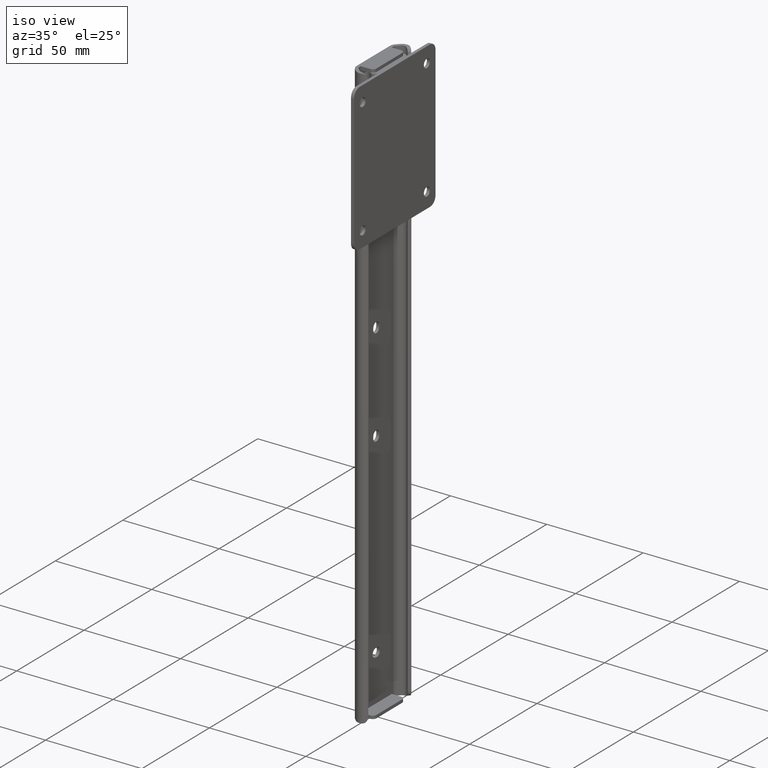
[diagram: clean part render]
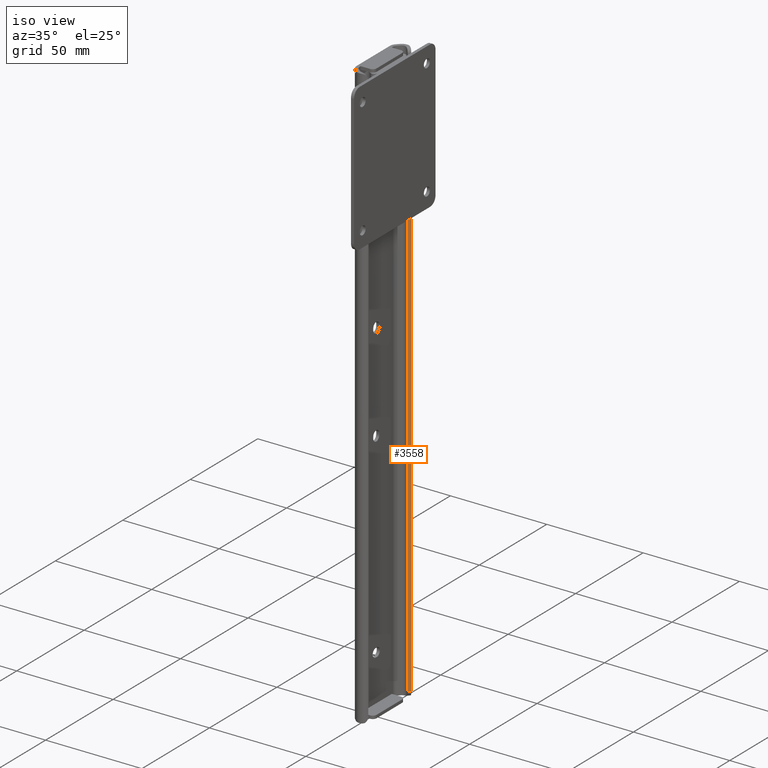
[diagram: same view with one face highlighted and labeled with its STEP entity id]
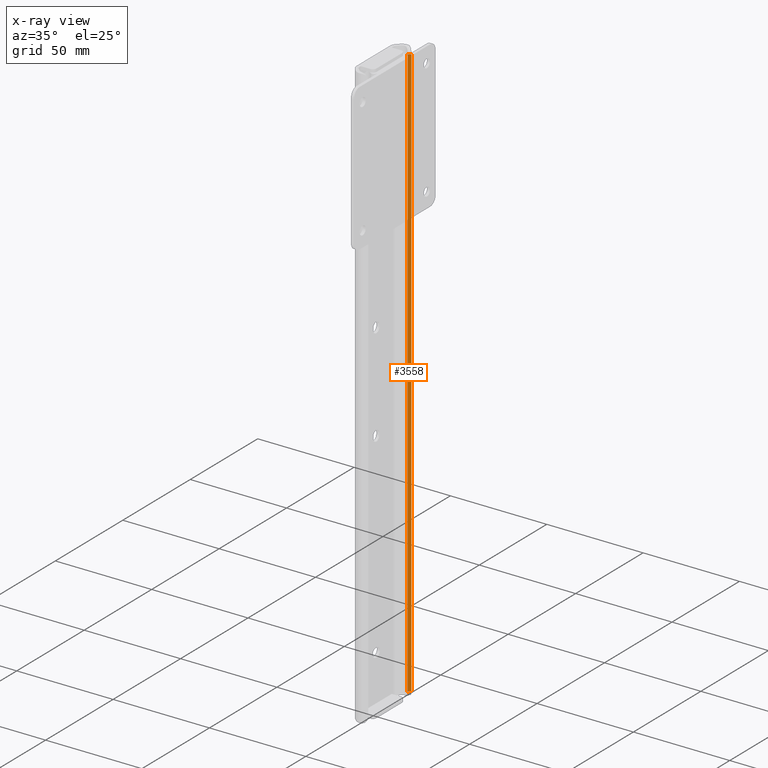
[diagram: x-ray of the same camera — body ghosted, the highlighted face saturated]
A machine part, iso view. The second image highlights one B-rep face of the part: STEP entity #3558.
The next image is the same camera in x-ray: the body ghosted, the highlighted face saturated — about 0% of this face is hidden behind the body in this view.
In plain terms, the highlighted planar face has unit normal (0.7071, -0.7071, 0).
Its self-contained STEP definition (entity closure, byte-faithful):
#25 = VECTOR ( 'NONE', #3204, 1000.000000000000000 ) ;
#136 = EDGE_CURVE ( 'NONE', #2704, #1135, #3371, .T. ) ;
#316 = CARTESIAN_POINT ( 'NONE',  ( 8.600000000000134648, 15.99856997870845809, -304.8000000000000114 ) ) ;
#431 = ORIENTED_EDGE ( 'NONE', *, *, #2764, .T. ) ;
#520 = CARTESIAN_POINT ( 'NONE',  ( 8.600000000000134648, 15.99856997870845809, -3.000000000000002665 ) ) ;
#653 = ORIENTED_EDGE ( 'NONE', *, *, #136, .F. ) ;
#679 = EDGE_LOOP ( 'NONE', ( #653, #431, #3618, #3085 ) ) ;
#688 = EDGE_CURVE ( 'NONE', #1230, #2259, #1467, .T. ) ;
#744 = CARTESIAN_POINT ( 'NONE',  ( 8.600000000000134648, 15.99856997870845809, -3.000000000000113687 ) ) ;
#956 = VECTOR ( 'NONE', #1674, 1000.000000000000114 ) ;
#1135 = VERTEX_POINT ( 'NONE', #2605 ) ;
#1180 = VECTOR ( 'NONE', #2781, 1000.000000000000000 ) ;
#1230 = VERTEX_POINT ( 'NONE', #3699 ) ;
#1312 = LINE ( 'NONE', #2529, #1980 ) ;
#1467 = LINE ( 'NONE', #316, #25 ) ;
#1573 = DIRECTION ( 'NONE',  ( 0.7071067811864955033, -0.7071067811865996422, 0.0000000000000000000 ) ) ;
#1674 = DIRECTION ( 'NONE',  ( -0.7071067811865995312, -0.7071067811864953923, -0.0000000000000000000 ) ) ;
#1737 = AXIS2_PLACEMENT_3D ( 'NONE', #3555, #1573, #2716 ) ;
#1980 = VECTOR ( 'NONE', #2453, 1000.000000000000114 ) ;
#1998 = EDGE_CURVE ( 'NONE', #2259, #1135, #2256, .T. ) ;
#2205 = CARTESIAN_POINT ( 'NONE',  ( 7.468629150101567582, 14.86719912881005712, -304.8000000000000114 ) ) ;
#2234 = CARTESIAN_POINT ( 'NONE',  ( 7.468629150101567582, 14.86719912881005712, -301.8000000000000114 ) ) ;
#2256 = LINE ( 'NONE', #520, #956 ) ;
#2259 = VERTEX_POINT ( 'NONE', #744 ) ;
#2453 = DIRECTION ( 'NONE',  ( 0.7071067811865995312, 0.7071067811864953923, -0.0000000000000000000 ) ) ;
#2529 = CARTESIAN_POINT ( 'NONE',  ( 8.600000000000134648, 15.99856997870845809, -301.8000000000000114 ) ) ;
#2605 = CARTESIAN_POINT ( 'NONE',  ( 7.468629150101567582, 14.86719912881005712, -3.000000000000113687 ) ) ;
#2704 = VERTEX_POINT ( 'NONE', #2234 ) ;
#2716 = DIRECTION ( 'NONE',  ( 0.7071067811865995312, 0.7071067811864953923, 0.0000000000000000000 ) ) ;
#2764 = EDGE_CURVE ( 'NONE', #2704, #1230, #1312, .T. ) ;
#2781 = DIRECTION ( 'NONE',  ( 0.0000000000000000000, 0.0000000000000000000, 1.000000000000000000 ) ) ;
#2964 = FACE_OUTER_BOUND ( 'NONE', #679, .T. ) ;
#3085 = ORIENTED_EDGE ( 'NONE', *, *, #1998, .T. ) ;
#3204 = DIRECTION ( 'NONE',  ( 0.0000000000000000000, 0.0000000000000000000, 1.000000000000000000 ) ) ;
#3371 = LINE ( 'NONE', #2205, #1180 ) ;
#3555 = CARTESIAN_POINT ( 'NONE',  ( 8.600000000000134648, 15.99856997870845809, -304.8000000000000114 ) ) ;
#3558 = ADVANCED_FACE ( 'NONE', ( #2964 ), #3570, .T. ) ;
#3570 = PLANE ( 'NONE',  #1737 ) ;
#3618 = ORIENTED_EDGE ( 'NONE', *, *, #688, .T. ) ;
#3699 = CARTESIAN_POINT ( 'NONE',  ( 8.600000000000134648, 15.99856997870845809, -301.8000000000000114 ) ) ;